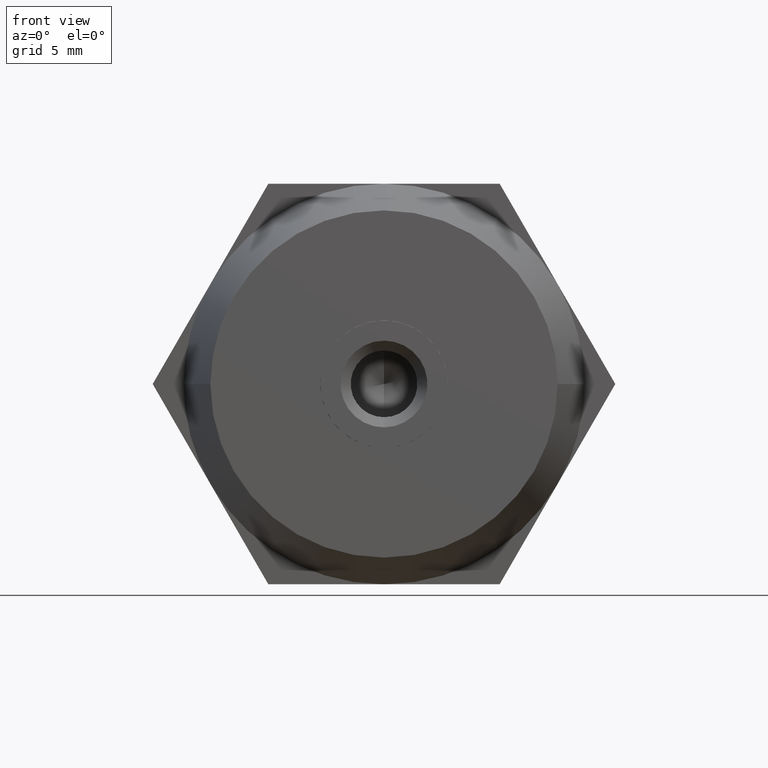
[diagram: clean part render]
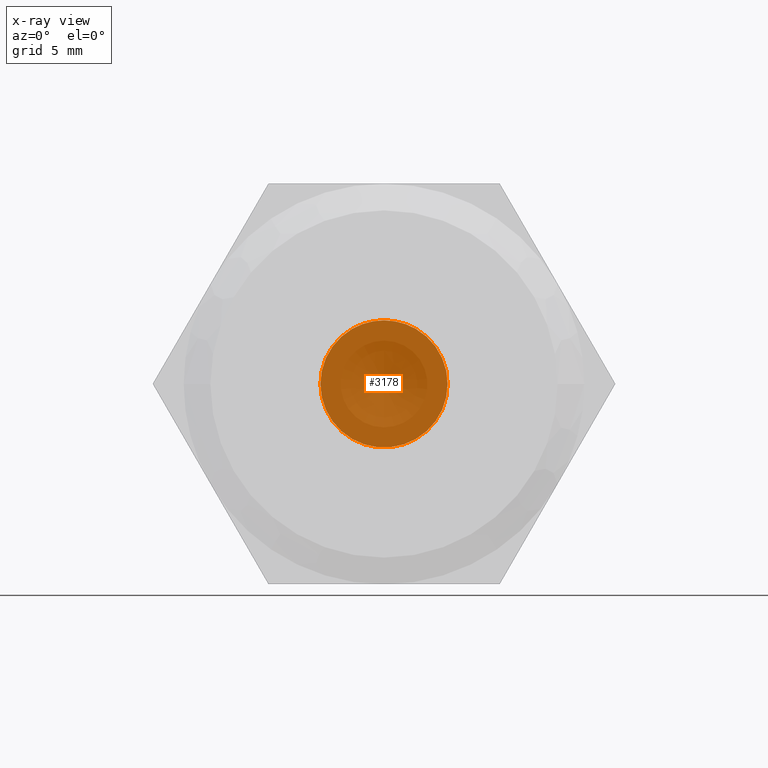
[diagram: x-ray — body ghosted, one internal face saturated and labeled with its STEP entity id]
A machine part, front view, then the same camera in x-ray: the body is ghosted and one INTERNAL B-rep face — a face not visible from any outside direction — is saturated and labeled: STEP entity #3178.
In plain terms, the highlighted planar face has unit normal (0, 1, 0).
Its self-contained STEP definition (entity closure, byte-faithful):
#4 = CIRCLE ( 'NONE', #3370, 4.762500000000000200 ) ;
#84 = DIRECTION ( 'NONE',  ( 0.0000000000000000000, 0.0000000000000000000, 1.000000000000000000 ) ) ;
#270 = DIRECTION ( 'NONE',  ( -0.0000000000000000000, -1.000000000000000000, -0.0000000000000000000 ) ) ;
#304 = ORIENTED_EDGE ( 'NONE', *, *, #3861, .F. ) ;
#376 = DIRECTION ( 'NONE',  ( -0.0000000000000000000, -1.000000000000000000, -0.0000000000000000000 ) ) ;
#395 = AXIS2_PLACEMENT_3D ( 'NONE', #2211, #1011, #419 ) ;
#419 = DIRECTION ( 'NONE',  ( 1.776356839400250500E-015, 0.0000000000000000000, 1.000000000000000000 ) ) ;
#529 = DIRECTION ( 'NONE',  ( -0.0000000000000000000, -1.000000000000000000, -0.0000000000000000000 ) ) ;
#609 = CIRCLE ( 'NONE', #395, 4.762500000000000200 ) ;
#644 = ORIENTED_EDGE ( 'NONE', *, *, #2752, .F. ) ;
#666 = CARTESIAN_POINT ( 'NONE',  ( 0.0000000000000000000, 7.009999999999999800, 0.0000000000000000000 ) ) ;
#714 = AXIS2_PLACEMENT_3D ( 'NONE', #732, #2540, #2339 ) ;
#732 = CARTESIAN_POINT ( 'NONE',  ( 0.0000000000000000000, 7.009999999999999800, 0.0000000000000000000 ) ) ;
#796 = AXIS2_PLACEMENT_3D ( 'NONE', #2849, #1949, #3562 ) ;
#818 = ORIENTED_EDGE ( 'NONE', *, *, #3313, .F. ) ;
#954 = CARTESIAN_POINT ( 'NONE',  ( 0.0000000000000000000, 7.009999999999999800, 0.0000000000000000000 ) ) ;
#1011 = DIRECTION ( 'NONE',  ( -0.0000000000000000000, -1.000000000000000000, -0.0000000000000000000 ) ) ;
#1071 = VERTEX_POINT ( 'NONE', #1649 ) ;
#1144 = AXIS2_PLACEMENT_3D ( 'NONE', #3592, #270, #1793 ) ;
#1433 = CIRCLE ( 'NONE', #796, 4.762500000000000200 ) ;
#1535 = ORIENTED_EDGE ( 'NONE', *, *, #3503, .F. ) ;
#1604 = EDGE_LOOP ( 'NONE', ( #818, #304, #644, #3559, #1535, #2013, #2896 ) ) ;
#1649 = CARTESIAN_POINT ( 'NONE',  ( -4.762500000000000200, 7.009999999999999800, -6.938893903907230000E-015 ) ) ;
#1651 = CARTESIAN_POINT ( 'NONE',  ( 0.0000000000000000000, 7.009999999999999800, 0.0000000000000000000 ) ) ;
#1697 = AXIS2_PLACEMENT_3D ( 'NONE', #666, #2803, #84 ) ;
#1784 = VERTEX_POINT ( 'NONE', #2078 ) ;
#1793 = DIRECTION ( 'NONE',  ( 3.552713678800500900E-015, 0.0000000000000000000, 1.000000000000000000 ) ) ;
#1893 = DIRECTION ( 'NONE',  ( 0.0000000000000000000, 0.0000000000000000000, 1.000000000000000000 ) ) ;
#1918 = VERTEX_POINT ( 'NONE', #2092 ) ;
#1949 = DIRECTION ( 'NONE',  ( -0.0000000000000000000, -1.000000000000000000, -0.0000000000000000000 ) ) ;
#1969 = DIRECTION ( 'NONE',  ( -0.0000000000000000000, -1.000000000000000000, -0.0000000000000000000 ) ) ;
#1990 = CIRCLE ( 'NONE', #2770, 4.762500000000000200 ) ;
#1999 = CARTESIAN_POINT ( 'NONE',  ( 2.381250000000065400, 7.009999999999429600, -4.124445985523409200 ) ) ;
#2013 = ORIENTED_EDGE ( 'NONE', *, *, #2700, .F. ) ;
#2064 = CARTESIAN_POINT ( 'NONE',  ( 0.0000000000000000000, 7.009999999999999800, 0.0000000000000000000 ) ) ;
#2078 = CARTESIAN_POINT ( 'NONE',  ( 4.762500000000000200, 7.009999999999999800, 0.0000000000000000000 ) ) ;
#2092 = CARTESIAN_POINT ( 'NONE',  ( 0.0000000000000000000, 7.009999999999999800, 4.762500000000000200 ) ) ;
#2211 = CARTESIAN_POINT ( 'NONE',  ( 0.0000000000000000000, 7.009999999999999800, 0.0000000000000000000 ) ) ;
#2256 = CARTESIAN_POINT ( 'NONE',  ( 2.381249999999965000, 7.009999999999389600, 4.124445985523424300 ) ) ;
#2339 = DIRECTION ( 'NONE',  ( 0.0000000000000000000, 0.0000000000000000000, 1.000000000000000000 ) ) ;
#2481 = PLANE ( 'NONE',  #1697 ) ;
#2540 = DIRECTION ( 'NONE',  ( -0.0000000000000000000, -1.000000000000000000, -0.0000000000000000000 ) ) ;
#2548 = CIRCLE ( 'NONE', #3023, 4.762500000000000200 ) ;
#2700 = EDGE_CURVE ( 'NONE', #3467, #1071, #1433, .T. ) ;
#2709 = CARTESIAN_POINT ( 'NONE',  ( -2.381250000000000100, 7.009999999999429600, -4.124445985523444800 ) ) ;
#2721 = FACE_OUTER_BOUND ( 'NONE', #1604, .T. ) ;
#2752 = EDGE_CURVE ( 'NONE', #3895, #1784, #3159, .T. ) ;
#2770 = AXIS2_PLACEMENT_3D ( 'NONE', #954, #376, #1893 ) ;
#2803 = DIRECTION ( 'NONE',  ( 0.0000000000000000000, 1.000000000000000000, 0.0000000000000000000 ) ) ;
#2849 = CARTESIAN_POINT ( 'NONE',  ( 0.0000000000000000000, 7.009999999999999800, 0.0000000000000000000 ) ) ;
#2894 = DIRECTION ( 'NONE',  ( -1.776356839400250500E-015, 0.0000000000000000000, 1.000000000000000000 ) ) ;
#2896 = ORIENTED_EDGE ( 'NONE', *, *, #3586, .F. ) ;
#3014 = CIRCLE ( 'NONE', #1144, 4.762500000000000200 ) ;
#3023 = AXIS2_PLACEMENT_3D ( 'NONE', #2064, #529, #2894 ) ;
#3159 = CIRCLE ( 'NONE', #714, 4.762500000000000200 ) ;
#3165 = DIRECTION ( 'NONE',  ( 0.0000000000000000000, 0.0000000000000000000, 1.000000000000000000 ) ) ;
#3178 = ADVANCED_FACE ( 'NONE', ( #2721 ), #2481, .T. ) ;
#3313 = EDGE_CURVE ( 'NONE', #3636, #1918, #3014, .T. ) ;
#3370 = AXIS2_PLACEMENT_3D ( 'NONE', #1651, #1969, #3165 ) ;
#3467 = VERTEX_POINT ( 'NONE', #3622 ) ;
#3474 = VERTEX_POINT ( 'NONE', #2709 ) ;
#3503 = EDGE_CURVE ( 'NONE', #1071, #3474, #1990, .T. ) ;
#3559 = ORIENTED_EDGE ( 'NONE', *, *, #3599, .F. ) ;
#3562 = DIRECTION ( 'NONE',  ( 0.0000000000000000000, 0.0000000000000000000, 1.000000000000000000 ) ) ;
#3586 = EDGE_CURVE ( 'NONE', #1918, #3467, #4, .T. ) ;
#3592 = CARTESIAN_POINT ( 'NONE',  ( 0.0000000000000000000, 7.009999999999999800, 0.0000000000000000000 ) ) ;
#3599 = EDGE_CURVE ( 'NONE', #3474, #3895, #609, .T. ) ;
#3622 = CARTESIAN_POINT ( 'NONE',  ( -2.381250000000000100, 7.009999999999999800, 4.124445985523419900 ) ) ;
#3636 = VERTEX_POINT ( 'NONE', #2256 ) ;
#3861 = EDGE_CURVE ( 'NONE', #1784, #3636, #2548, .T. ) ;
#3895 = VERTEX_POINT ( 'NONE', #1999 ) ;